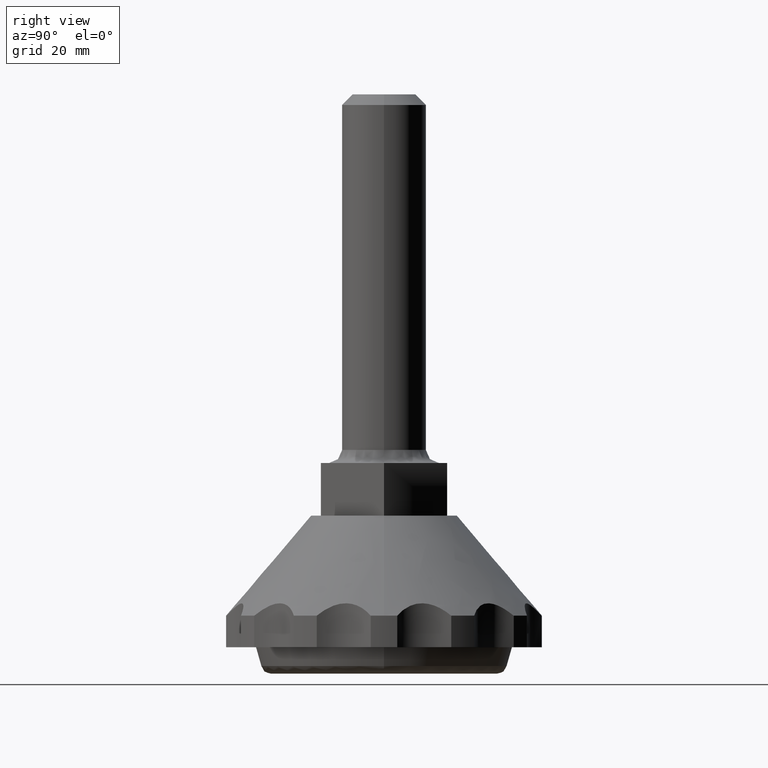
[diagram: clean part render]
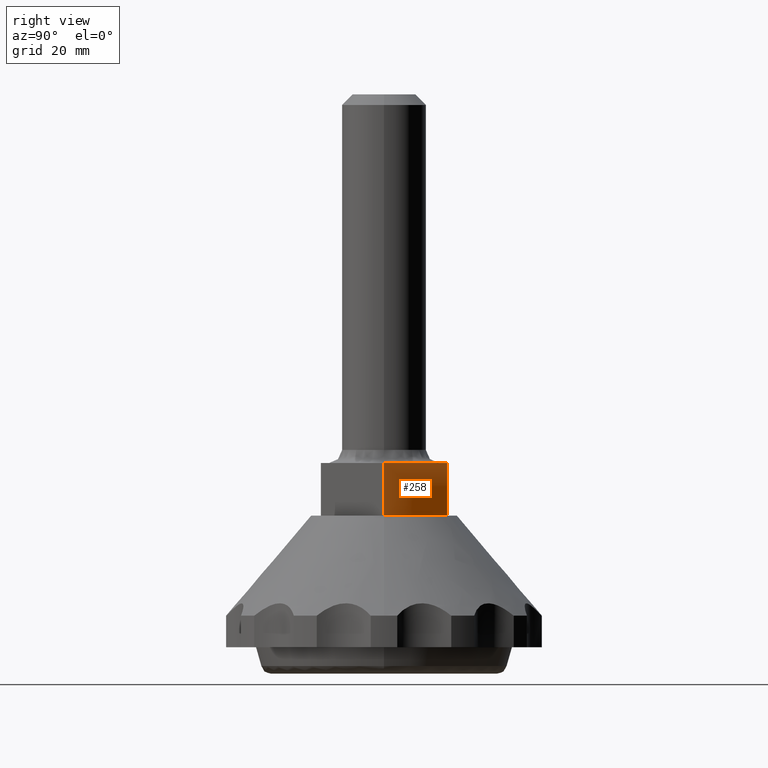
[diagram: same view with one face highlighted and labeled with its STEP entity id]
A machine part, right view. The second image highlights one B-rep face of the part: STEP entity #258.
In plain terms, the highlighted planar face has unit normal (-0.866, -0.5, 0).
Its self-contained STEP definition (entity closure, byte-faithful):
#258=ADVANCED_FACE('',(#1025),#1024,.F.);
#1024=PLANE('',#1853);
#1025=FACE_OUTER_BOUND('',#1854,.T.);
#1850=CARTESIAN_POINT('',(6.22897670000E+00,1.32000000000E+01,2.90000000000E+01));
#1851=DIRECTION('',(-8.66025410981E-01,-4.99999987536E-01,0.00000000000E+00));
#1852=DIRECTION('',(4.99999987536E-01,-8.66025410981E-01,0.00000000000E+00));
#1853=AXIS2_PLACEMENT_3D('',#1850,#1851,#1852);
#1854=EDGE_LOOP('',(#2518,#2519,#2520,#2521,#2522));
#2518=ORIENTED_EDGE('',*,*,#2819,.T.);
#2519=ORIENTED_EDGE('',*,*,#2896,.F.);
#2520=ORIENTED_EDGE('',*,*,#2897,.F.);
#2521=ORIENTED_EDGE('',*,*,#2823,.F.);
#2522=ORIENTED_EDGE('',*,*,#2894,.T.);
#2819=EDGE_CURVE('',#3786,#3787,#3788,.T.);
#2823=EDGE_CURVE('',#3813,#3814,#3815,.T.);
#2894=EDGE_CURVE('',#3813,#3786,#4296,.T.);
#2896=EDGE_CURVE('',#3758,#3787,#4308,.T.);
#2897=EDGE_CURVE('',#3814,#3758,#4314,.T.);
#3758=VERTEX_POINT('',#5171);
#3786=VERTEX_POINT('',#5185);
#3787=VERTEX_POINT('',#5186);
#3788=LINE('',#5187,#5188);
#3813=VERTEX_POINT('',#5200);
#3814=VERTEX_POINT('',#5201);
#3815=LINE('',#5202,#5203);
#4296=LINE('',#5696,#5697);
#4308=(BOUNDED_CURVE() B_SPLINE_CURVE(2,(#5701,#5702,#5703),.UNSPECIFIED.,.F.,.F.) B_SPLINE_CURVE_WITH_KNOTS((3,3),(0.00000000000E+00,1.00000000000E+00),.UNSPECIFIED.) CURVE() GEOMETRIC_REPRESENTATION_ITEM() RATIONAL_B_SPLINE_CURVE((1.00000000000E+00,9.99999919647E-01,1.00000000000E+00)) REPRESENTATION_ITEM('') );
#4314=(BOUNDED_CURVE() B_SPLINE_CURVE(1,(#5704,#5705),.UNSPECIFIED.,.F.,.F.) B_SPLINE_CURVE_WITH_KNOTS((2,2),(0.00000000000E+00,1.00000000000E+00),.UNSPECIFIED.) CURVE() GEOMETRIC_REPRESENTATION_ITEM() RATIONAL_B_SPLINE_CURVE((1.00000000000E+00,1.00000000000E+00)) REPRESENTATION_ITEM('') );
#5171=CARTESIAN_POINT('',(6.91538140669E+00,1.20000000000E+01,3.00000000000E+01));
#5185=CARTESIAN_POINT('',(1.38500000000E+01,2.60208521397E-15,3.00000000000E+01));
#5186=CARTESIAN_POINT('',(6.92500034525E+00,1.19944516431E+01,3.00000000000E+01));
#5187=CARTESIAN_POINT('',(1.38500000000E+01,1.95156394291E-15,3.00000000000E+01));
#5188=VECTOR('',#5189,1.38499996547E+01);
#5189=DIRECTION('',(-4.99999987536E-01,8.66025410981E-01,0.00000000000E+00));
#5200=CARTESIAN_POINT('',(1.38500000000E+01,0.00000000000E+00,4.00000000000E+01));
#5201=CARTESIAN_POINT('',(6.92179700000E+00,1.20000000000E+01,4.00000000000E+01));
#5202=CARTESIAN_POINT('',(1.38500000000E+01,0.00000000000E+00,4.00000000000E+01));
#5203=VECTOR('',#5204,1.38564063454E+01);
#5204=DIRECTION('',(-4.99999987536E-01,8.66025410981E-01,0.00000000000E+00));
#5696=CARTESIAN_POINT('',(1.38500000000E+01,0.00000000000E+00,4.00000000000E+01));
#5697=VECTOR('',#5698,1.00000000000E+01);
#5698=DIRECTION('',(0.00000000000E+00,0.00000000000E+00,-1.00000000000E+00));
#5701=CARTESIAN_POINT('',(6.91538140669E+00,1.20000000000E+01,3.00000000000E+01));
#5702=CARTESIAN_POINT('',(6.92019198809E+00,1.19972277496E+01,3.00000000000E+01));
#5703=CARTESIAN_POINT('',(6.92500034525E+00,1.19944516431E+01,3.00000000000E+01));
#5704=CARTESIAN_POINT('',(6.92179700000E+00,1.20000000000E+01,4.00000000000E+01));
#5705=CARTESIAN_POINT('',(6.91538140669E+00,1.20000000000E+01,3.00000000000E+01));